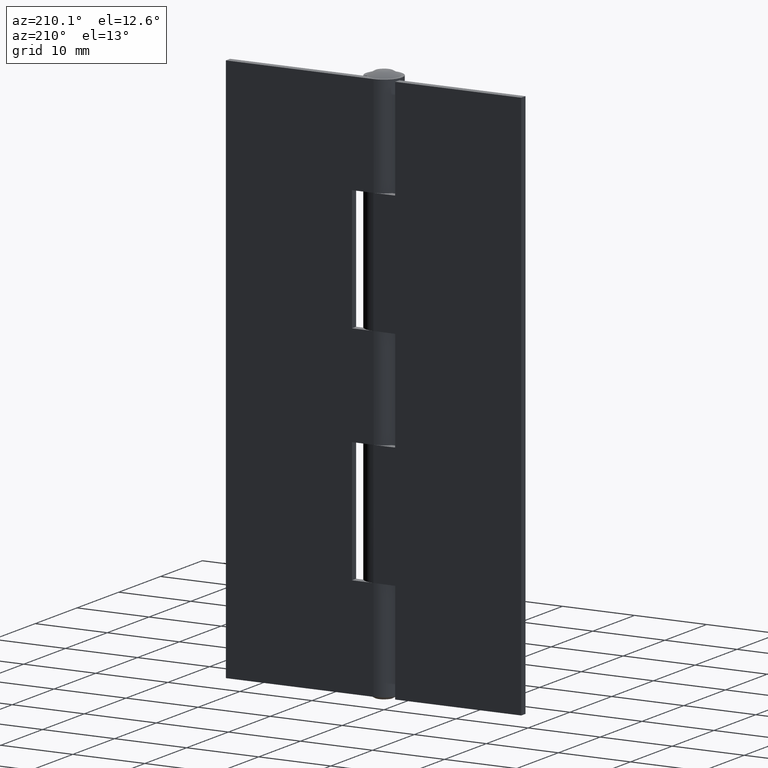
[diagram: clean part render]
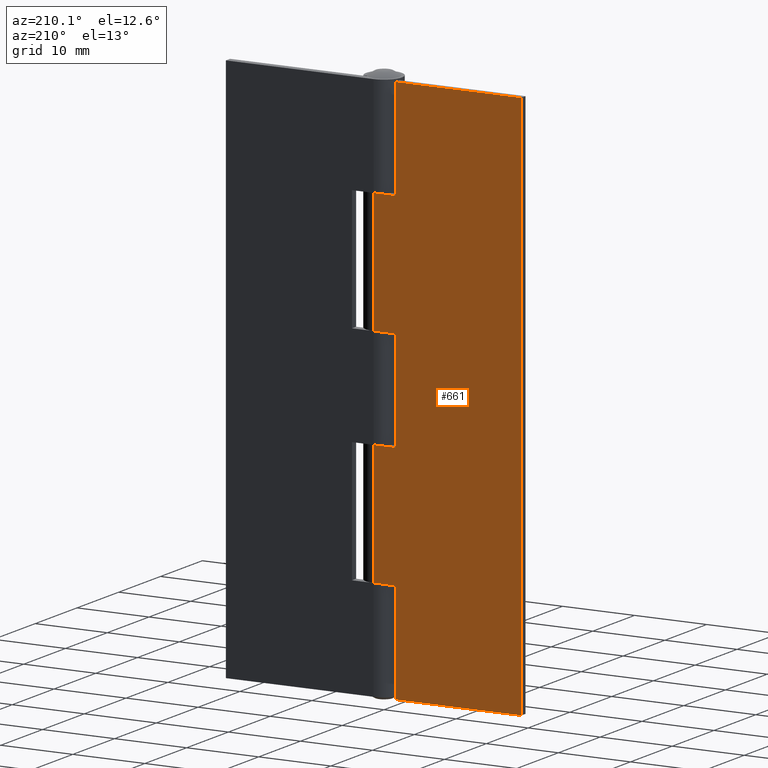
[diagram: same view with one face highlighted and labeled with its STEP entity id]
A machine part, auxiliary view. The second image highlights one B-rep face of the part: STEP entity #661.
In plain terms, the highlighted face is a freeform B-spline surface patch.
Its self-contained STEP definition (entity closure, byte-faithful):
#19=CARTESIAN_POINT('',(-3.0,2.499998999999975,62.0));
#20=VERTEX_POINT('',#19);
#26=CARTESIAN_POINT('',(-3.0,2.499999000000000,76.0));
#27=VERTEX_POINT('',#26);
#28=CARTESIAN_POINT('',(-3.0,2.499999000000000,76.0));
#29=CARTESIAN_POINT('',(-3.0,2.499998999999975,62.0));
#30=QUASI_UNIFORM_CURVE('',1,(#28,#29),.UNSPECIFIED.,.F.,.U.);
#31=EDGE_CURVE('',#27,#20,#30,.T.);
#89=CARTESIAN_POINT('',(2.862294E-014,2.499998999999975,62.0));
#90=VERTEX_POINT('',#89);
#120=CARTESIAN_POINT('',(-3.0,2.499998999999975,62.0));
#121=CARTESIAN_POINT('',(2.862294E-014,2.499998999999975,62.0));
#122=QUASI_UNIFORM_CURVE('',1,(#120,#121),.UNSPECIFIED.,.F.,.U.);
#123=EDGE_CURVE('',#20,#90,#122,.T.);
#134=CARTESIAN_POINT('',(2.857478E-014,2.499999000000000,14.0));
#135=VERTEX_POINT('',#134);
#214=CARTESIAN_POINT('',(-3.0,2.499998999999975,14.0));
#215=VERTEX_POINT('',#214);
#221=CARTESIAN_POINT('',(-3.0,2.499998999999975,14.0));
#222=CARTESIAN_POINT('',(2.857478E-014,2.499999000000000,14.0));
#223=QUASI_UNIFORM_CURVE('',1,(#221,#222),.UNSPECIFIED.,.F.,.U.);
#224=EDGE_CURVE('',#215,#135,#223,.T.);
#236=CARTESIAN_POINT('',(-3.0,2.499998999999975,9.268043E-016));
#237=VERTEX_POINT('',#236);
#243=CARTESIAN_POINT('',(-3.0,2.499998999999975,9.268043E-016));
#244=CARTESIAN_POINT('',(-3.0,2.499998999999975,14.0));
#245=QUASI_UNIFORM_CURVE('',1,(#243,#244),.UNSPECIFIED.,.F.,.U.);
#246=EDGE_CURVE('',#237,#215,#245,.T.);
#264=CARTESIAN_POINT('',(-3.0,2.499999000000000,45.0));
#265=VERTEX_POINT('',#264);
#271=CARTESIAN_POINT('',(2.857478E-014,2.499999000000000,45.0));
#272=VERTEX_POINT('',#271);
#273=CARTESIAN_POINT('',(-3.0,2.499999000000000,45.0));
#274=CARTESIAN_POINT('',(2.857478E-014,2.499999000000000,45.0));
#275=QUASI_UNIFORM_CURVE('',1,(#273,#274),.UNSPECIFIED.,.F.,.U.);
#276=EDGE_CURVE('',#265,#272,#275,.T.);
#364=CARTESIAN_POINT('',(-3.0,2.499998999999975,31.0));
#365=VERTEX_POINT('',#364);
#371=CARTESIAN_POINT('',(-3.0,2.499998999999975,31.0));
#372=CARTESIAN_POINT('',(-3.0,2.499999000000000,45.0));
#373=QUASI_UNIFORM_CURVE('',1,(#371,#372),.UNSPECIFIED.,.F.,.U.);
#374=EDGE_CURVE('',#365,#265,#373,.T.);
#429=CARTESIAN_POINT('',(2.857478E-014,2.499999000000000,31.0));
#430=VERTEX_POINT('',#429);
#462=CARTESIAN_POINT('',(2.857478E-014,2.499999000000000,31.0));
#463=CARTESIAN_POINT('',(-3.0,2.499998999999975,31.0));
#464=QUASI_UNIFORM_CURVE('',1,(#462,#463),.UNSPECIFIED.,.F.,.U.);
#465=EDGE_CURVE('',#430,#365,#464,.T.);
#489=CARTESIAN_POINT('',(-20.500000000000000,2.499999000000000,0.0));
#490=VERTEX_POINT('',#489);
#496=CARTESIAN_POINT('',(-3.0,2.499998999999975,9.268043E-016));
#497=CARTESIAN_POINT('',(-20.500000000000000,2.499999000000000,0.0));
#498=QUASI_UNIFORM_CURVE('',1,(#496,#497),.UNSPECIFIED.,.F.,.U.);
#499=EDGE_CURVE('',#237,#490,#498,.T.);
#517=CARTESIAN_POINT('',(-20.500000000000000,2.499999000000000,76.0));
#518=VERTEX_POINT('',#517);
#524=CARTESIAN_POINT('',(-20.500000000000000,2.499999000000000,76.0));
#525=CARTESIAN_POINT('',(-20.500000000000000,2.499999000000000,0.0));
#526=QUASI_UNIFORM_CURVE('',1,(#524,#525),.UNSPECIFIED.,.F.,.U.);
#527=EDGE_CURVE('',#518,#490,#526,.T.);
#555=CARTESIAN_POINT('',(2.857478E-014,2.499999000000000,31.0));
#556=CARTESIAN_POINT('',(2.857478E-014,2.499999000000000,14.0));
#557=QUASI_UNIFORM_CURVE('',1,(#555,#556),.UNSPECIFIED.,.F.,.U.);
#558=EDGE_CURVE('',#430,#135,#557,.T.);
#624=CARTESIAN_POINT('',(-3.0,2.499999000000000,76.0));
#625=CARTESIAN_POINT('',(-20.500000000000000,2.499999000000000,76.0));
#626=QUASI_UNIFORM_CURVE('',1,(#624,#625),.UNSPECIFIED.,.F.,.U.);
#627=EDGE_CURVE('',#27,#518,#626,.T.);
#638=CARTESIAN_POINT('',(-21.523974960267019,2.499999000000000,79.796199852697242));
#639=CARTESIAN_POINT('',(-21.523974960267019,2.499999000000000,-3.796201891176099));
#640=CARTESIAN_POINT('',(1.023975510119900,2.499999000000000,79.796199852697242));
#641=CARTESIAN_POINT('',(1.023975510119900,2.499999000000000,-3.796201891176099));
#642=B_SPLINE_SURFACE_WITH_KNOTS('',1,1,((#638,#640),(#639,#641)),.UNSPECIFIED.,.F.,.F.,.U.,(2,2),(2,2),(0.0,83.592401743873339),(0.0,22.547950470386919),.UNSPECIFIED.);
#643=ORIENTED_EDGE('',*,*,#31,.T.);
#644=ORIENTED_EDGE('',*,*,#123,.T.);
#645=CARTESIAN_POINT('',(2.862294E-014,2.499998999999975,62.0));
#646=CARTESIAN_POINT('',(2.857478E-014,2.499999000000000,45.0));
#647=QUASI_UNIFORM_CURVE('',1,(#645,#646),.UNSPECIFIED.,.F.,.U.);
#648=EDGE_CURVE('',#90,#272,#647,.T.);
#649=ORIENTED_EDGE('',*,*,#648,.T.);
#650=ORIENTED_EDGE('',*,*,#276,.F.);
#651=ORIENTED_EDGE('',*,*,#374,.F.);
#652=ORIENTED_EDGE('',*,*,#465,.F.);
#653=ORIENTED_EDGE('',*,*,#558,.T.);
#654=ORIENTED_EDGE('',*,*,#224,.F.);
#655=ORIENTED_EDGE('',*,*,#246,.F.);
#656=ORIENTED_EDGE('',*,*,#499,.T.);
#657=ORIENTED_EDGE('',*,*,#527,.F.);
#658=ORIENTED_EDGE('',*,*,#627,.F.);
#659=EDGE_LOOP('',(#643,#644,#649,#650,#651,#652,#653,#654,#655,#656,#657,#658));
#660=FACE_OUTER_BOUND('',#659,.T.);
#661=ADVANCED_FACE('',(#660),#642,.F.);